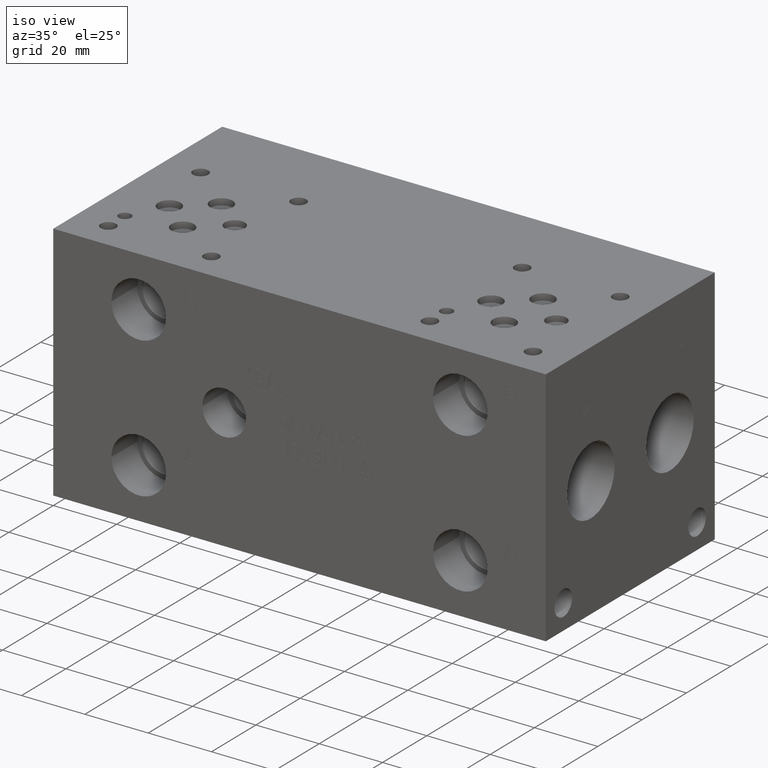
[diagram: clean part render]
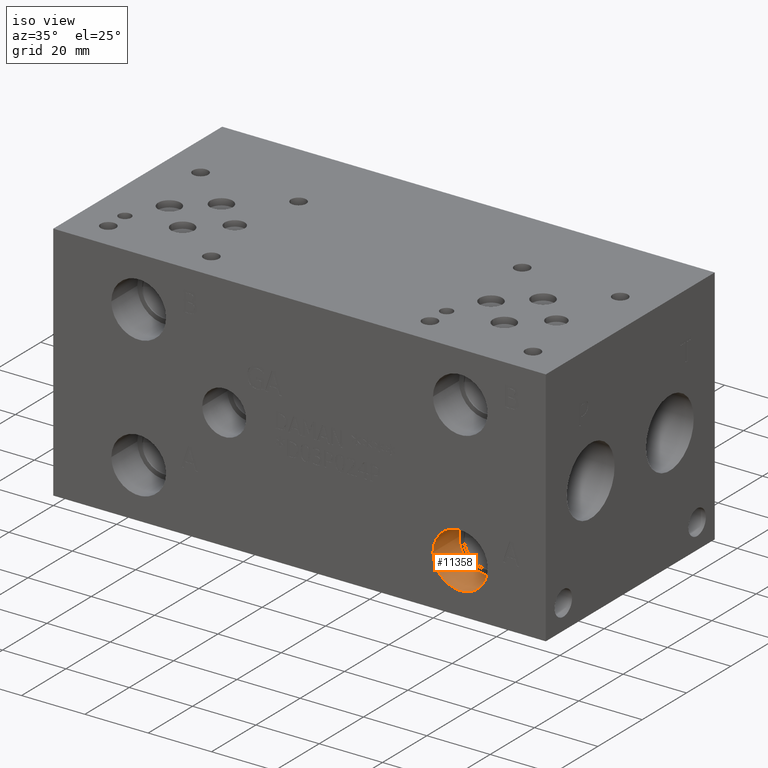
[diagram: same view with one face highlighted and labeled with its STEP entity id]
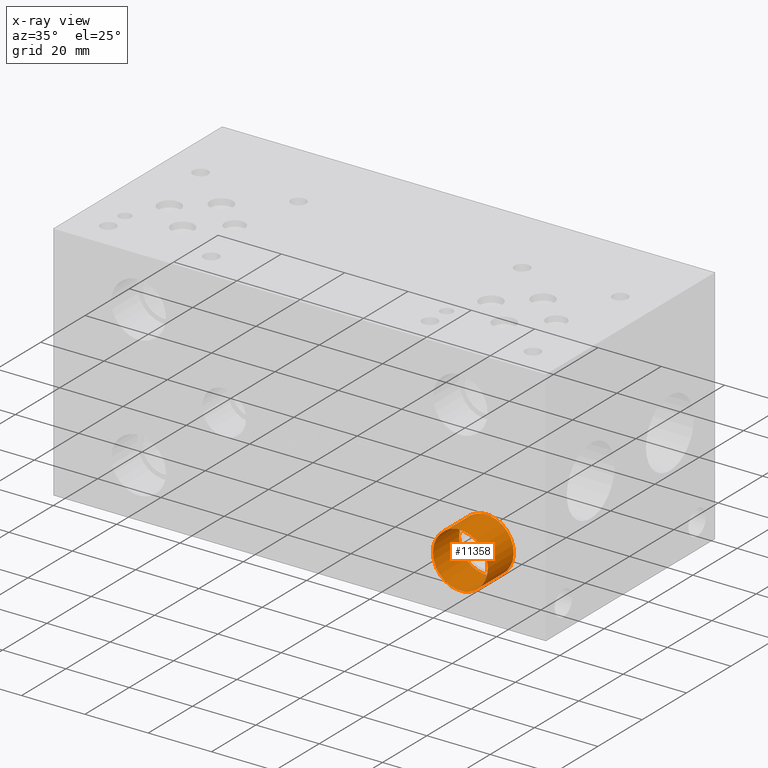
[diagram: x-ray of the same camera — body ghosted, the highlighted face saturated]
A machine part, iso view. The second image highlights one B-rep face of the part: STEP entity #11358.
The next image is the same camera in x-ray: the body ghosted, the highlighted face saturated — about 0% of this face is hidden behind the body in this view.
In plain terms, the highlighted cylindrical surface (bore or boss wall) has radius 8.6487 mm, axis along (0, -1, 0).
Its self-contained STEP definition (entity closure, byte-faithful):
#38=CYLINDRICAL_SURFACE('',#11902,8.6487);
#121=CIRCLE('',#11572,8.6487);
#122=CIRCLE('',#11573,8.6487);
#185=CIRCLE('',#11899,8.6487);
#186=CIRCLE('',#11900,8.6487);
#1261=FACE_OUTER_BOUND('',#1916,.T.);
#1916=EDGE_LOOP('',(#9911,#9912,#9913,#9914,#9915,#9916));
#3042=LINE('',#19182,#4130);
#4130=VECTOR('',#14042,8.6487);
#4943=VERTEX_POINT('',#17061);
#4944=VERTEX_POINT('',#17062);
#5429=VERTEX_POINT('',#19175);
#5430=VERTEX_POINT('',#19176);
#6219=EDGE_CURVE('',#4943,#4944,#121,.T.);
#6220=EDGE_CURVE('',#4944,#4943,#122,.T.);
#6962=EDGE_CURVE('',#5429,#5430,#185,.T.);
#6963=EDGE_CURVE('',#5430,#5429,#186,.T.);
#6965=EDGE_CURVE('',#4944,#5430,#3042,.T.);
#9911=ORIENTED_EDGE('',*,*,#6219,.F.);
#9912=ORIENTED_EDGE('',*,*,#6220,.F.);
#9913=ORIENTED_EDGE('',*,*,#6965,.T.);
#9914=ORIENTED_EDGE('',*,*,#6962,.F.);
#9915=ORIENTED_EDGE('',*,*,#6963,.F.);
#9916=ORIENTED_EDGE('',*,*,#6965,.F.);
#11358=ADVANCED_FACE('',(#1261),#38,.F.);
#11572=AXIS2_PLACEMENT_3D('',#17063,#12775,#12776);
#11573=AXIS2_PLACEMENT_3D('',#17064,#12777,#12778);
#11899=AXIS2_PLACEMENT_3D('',#19177,#14034,#14035);
#11900=AXIS2_PLACEMENT_3D('',#19178,#14036,#14037);
#11902=AXIS2_PLACEMENT_3D('',#19181,#14040,#14041);
#12775=DIRECTION('center_axis',(0.,1.,0.));
#12776=DIRECTION('ref_axis',(1.,0.,0.));
#12777=DIRECTION('center_axis',(0.,1.,0.));
#12778=DIRECTION('ref_axis',(1.,0.,0.));
#14034=DIRECTION('center_axis',(0.,-1.,0.));
#14035=DIRECTION('ref_axis',(1.,0.,0.));
#14036=DIRECTION('center_axis',(0.,-1.,0.));
#14037=DIRECTION('ref_axis',(1.,0.,0.));
#14040=DIRECTION('center_axis',(0.,-1.,0.));
#14041=DIRECTION('ref_axis',(1.,0.,0.));
#14042=DIRECTION('',(0.,1.,0.));
#17061=CARTESIAN_POINT('',(137.2235,0.,15.875));
#17062=CARTESIAN_POINT('',(119.9261,0.,15.875));
#17063=CARTESIAN_POINT('Origin',(128.5748,0.,15.875));
#17064=CARTESIAN_POINT('Origin',(128.5748,0.,15.875));
#19175=CARTESIAN_POINT('',(137.2235,11.7348,15.875));
#19176=CARTESIAN_POINT('',(119.9261,11.7348,15.875));
#19177=CARTESIAN_POINT('Origin',(128.5748,11.7348,15.875));
#19178=CARTESIAN_POINT('Origin',(128.5748,11.7348,15.875));
#19181=CARTESIAN_POINT('Origin',(128.5748,5.8674,15.875));
#19182=CARTESIAN_POINT('',(119.9261,5.8674,15.875));